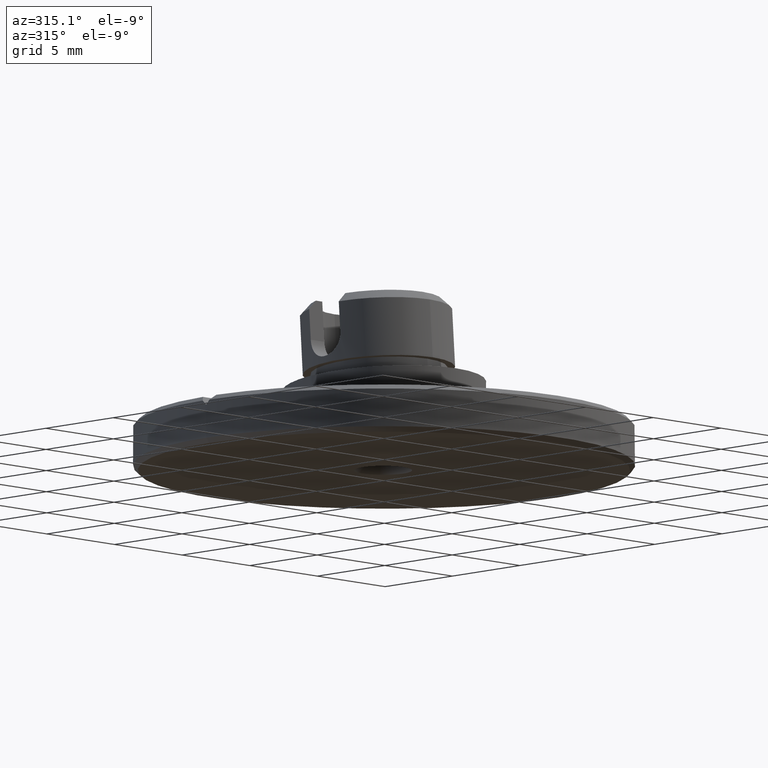
[diagram: clean part render]
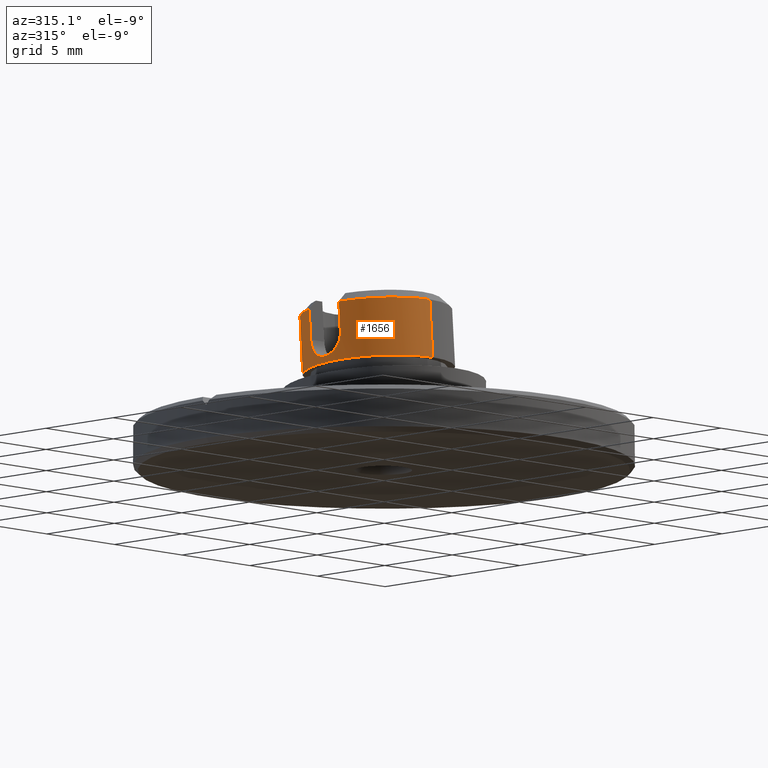
[diagram: same view with one face highlighted and labeled with its STEP entity id]
A machine part, auxiliary view. The second image highlights one B-rep face of the part: STEP entity #1656.
In plain terms, the highlighted cylindrical surface (partial cylindrical patch) has radius 4 mm, axis along (0, -0.0706, -0.9975).
Its self-contained STEP definition (entity closure, byte-faithful):
#6 = EDGE_CURVE ( 'NONE', #1511, #1275, #233, .T. ) ;
#13 = AXIS2_PLACEMENT_3D ( 'NONE', #252, #1212, #1739 ) ;
#33 = VERTEX_POINT ( 'NONE', #462 ) ;
#37 = AXIS2_PLACEMENT_3D ( 'NONE', #369, #1447, #246 ) ;
#69 = CARTESIAN_POINT ( 'NONE',  ( -3.949841633802362306, -0.2260954249495054635, 5.884650630171138097 ) ) ;
#91 = EDGE_CURVE ( 'NONE', #502, #468, #1169, .T. ) ;
#102 = CARTESIAN_POINT ( 'NONE',  ( -3.845776904042851552, -0.6305835851725555274, 6.668713156939706899 ) ) ;
#155 = CARTESIAN_POINT ( 'NONE',  ( 4.898587195981239528E-16, -3.396027000143525765, 8.671665112364138395 ) ) ;
#199 = FACE_OUTER_BOUND ( 'NONE', #254, .T. ) ;
#212 = CARTESIAN_POINT ( 'NONE',  ( -4.002202466705472084, 0.3248506242750630602, 5.643277554917893291 ) ) ;
#225 = VERTEX_POINT ( 'NONE', #969 ) ;
#227 = CARTESIAN_POINT ( 'NONE',  ( -3.999245467458501846, 0.4774496579999999990, 5.643277555000000056 ) ) ;
#233 = CIRCLE ( 'NONE', #37, 3.999999999306927290 ) ;
#239 = CARTESIAN_POINT ( 'NONE',  ( -3.855283437522810885, -0.6092927609013290002, 6.516415910101970965 ) ) ;
#243 = CARTESIAN_POINT ( 'NONE',  ( -3.999245467458501846, 0.4774496579999999990, 5.643277555000000056 ) ) ;
#246 = DIRECTION ( 'NONE',  ( 0.000000000000000000, 0.9975027964162799243, -0.07062698593102831324 ) ) ;
#252 = CARTESIAN_POINT ( 'NONE',  ( 0.000000000000000000, 0.5939841850262223000, 8.389157168675165366 ) ) ;
#254 = EDGE_LOOP ( 'NONE', ( #835, #1500, #721, #1558, #938, #1730, #792, #865, #1379 ) ) ;
#271 = CIRCLE ( 'NONE', #704, 3.999999999503388803 ) ;
#309 = CARTESIAN_POINT ( 'NONE',  ( -3.845776904999999690, 1.650626744000000201, 7.737903375999998445 ) ) ;
#338 = CARTESIAN_POINT ( 'NONE',  ( -3.845776904080406400, -0.6198034178708179409, 6.820967239133833182 ) ) ;
#347 = CARTESIAN_POINT ( 'NONE',  ( 0.000000000000000000, 4.583995370195976804, 8.106649224986124835 ) ) ;
#369 = CARTESIAN_POINT ( 'NONE',  ( 0.000000000000000000, 0.5939841850262223000, 8.389157168675165366 ) ) ;
#375 = CARTESIAN_POINT ( 'NONE',  ( -3.956445735948462161, 1.027421282519962231, 5.752271603674012468 ) ) ;
#392 = EDGE_CURVE ( 'NONE', #502, #1046, #1520, .T. ) ;
#421 = CARTESIAN_POINT ( 'NONE',  ( -3.845776904136075647, -0.6127407190647278235, 6.920717518701591686 ) ) ;
#457 = CARTESIAN_POINT ( 'NONE',  ( 4.898587195981239528E-16, -3.396027000143522656, 8.671665112364170369 ) ) ;
#462 = CARTESIAN_POINT ( 'NONE',  ( 0.000000000000000000, 4.365051713804024125, 5.014390556013872846 ) ) ;
#468 = VERTEX_POINT ( 'NONE', #1584 ) ;
#485 = LINE ( 'NONE', #347, #846 ) ;
#489 = CARTESIAN_POINT ( 'NONE',  ( -3.969905168674188634, -0.1009433282563570317, 5.795601120009746587 ) ) ;
#494 = VECTOR ( 'NONE', #1138, 1000.000000000000114 ) ;
#502 = VERTEX_POINT ( 'NONE', #1303 ) ;
#504 = EDGE_CURVE ( 'NONE', #468, #1206, #1162, .T. ) ;
#511 = CARTESIAN_POINT ( 'NONE',  ( -3.899094418882193214, 1.327123587928889847, 6.031452710930646610 ) ) ;
#540 = DIRECTION ( 'NONE',  ( 0.000000000000000000, 0.9975027964162804794, -0.07062698593102020861 ) ) ;
#648 = CARTESIAN_POINT ( 'NONE',  ( -3.880363411232375270, 1.409799123064931159, 6.143504813410682885 ) ) ;
#680 = CARTESIAN_POINT ( 'NONE',  ( -3.845776904080406400, -0.6198034178708179409, 6.820967239133833182 ) ) ;
#689 = VERTEX_POINT ( 'NONE', #830 ) ;
#690 = CARTESIAN_POINT ( 'NONE',  ( -3.845776903920725243, -0.5032688909071499905, 8.466846853190359568 ) ) ;
#704 = AXIS2_PLACEMENT_3D ( 'NONE', #1479, #1752, #540 ) ;
#721 = ORIENTED_EDGE ( 'NONE', *, *, #1041, .F. ) ;
#736 = VECTOR ( 'NONE', #975, 1000.000000000000000 ) ;
#753 = CYLINDRICAL_SURFACE ( 'NONE', #1425, 3.999999999503388803 ) ;
#780 = CARTESIAN_POINT ( 'NONE',  ( -3.996117288583032057, 0.1747324153680352432, 5.675105591784489256 ) ) ;
#792 = ORIENTED_EDGE ( 'NONE', *, *, #1284, .T. ) ;
#830 = CARTESIAN_POINT ( 'NONE',  ( 4.898587195981239528E-16, -3.614970656535478444, 5.579406443391885517 ) ) ;
#835 = ORIENTED_EDGE ( 'NONE', *, *, #1409, .F. ) ;
#846 = VECTOR ( 'NONE', #1728, 1000.000000000000000 ) ;
#865 = ORIENTED_EDGE ( 'NONE', *, *, #1172, .T. ) ;
#938 = ORIENTED_EDGE ( 'NONE', *, *, #91, .F. ) ;
#969 = CARTESIAN_POINT ( 'NONE',  ( 0.000000000000000000, 4.583995370195979469, 8.106649224986160363 ) ) ;
#975 = DIRECTION ( 'NONE',  ( 0.000000000000000000, -0.07062698593102016698, -0.9975027964162804794 ) ) ;
#980 = EDGE_CURVE ( 'NONE', #689, #33, #271, .T. ) ;
#1026 = DIRECTION ( 'NONE',  ( 0.000000000000000000, -0.07062698593102016698, -0.9975027964162804794 ) ) ;
#1033 = DIRECTION ( 'NONE',  ( 0.000000000000000000, 0.9975027964162804794, -0.07062698593102020861 ) ) ;
#1035 = CARTESIAN_POINT ( 'NONE',  ( -3.886544285283925593, -0.5089476023956016615, 6.233870315505503967 ) ) ;
#1041 = EDGE_CURVE ( 'NONE', #1206, #1275, #1343, .T. ) ;
#1046 = VERTEX_POINT ( 'NONE', #1499 ) ;
#1065 = CARTESIAN_POINT ( 'NONE',  ( -3.845776904341182245, 1.564852214132482988, 6.526463692365700453 ) ) ;
#1138 = DIRECTION ( 'NONE',  ( 0.000000000000000000, 0.07062698605560213672, 0.9975027964074595355 ) ) ;
#1162 = B_SPLINE_CURVE_WITH_KNOTS ( 'NONE', 3,
 ( #227, #212, #780, #489, #69, #1319, #1035, #239, #102, #338 ),
 .UNSPECIFIED., .F., .F.,
 ( 4, 2, 2, 2, 4 ),
 ( -9.353593745896338074E-14, 0.0004512627335315036762, 0.0009025254671565432086, 0.001353788200781582849, 0.001805050934406622490 ),
 .UNSPECIFIED. ) ;
#1169 = B_SPLINE_CURVE_WITH_KNOTS ( 'NONE', 3,
 ( #1561, #1065, #1175, #648, #511, #375, #1459, #243 ),
 .UNSPECIFIED., .F., .F.,
 ( 4, 2, 2, 4 ),
 ( -0.001649331700111985287, -0.001236998775107372821, -0.0008246658501027605715, -9.353585614380044433E-14 ),
 .UNSPECIFIED. ) ;
#1172 = EDGE_CURVE ( 'NONE', #225, #33, #485, .T. ) ;
#1175 = CARTESIAN_POINT ( 'NONE',  ( -3.853560230133680875, 1.528968594879399179, 6.392121191047349882 ) ) ;
#1206 = VERTEX_POINT ( 'NONE', #680 ) ;
#1212 = DIRECTION ( 'NONE',  ( 0.000000000000000000, -0.07062698593101987554, -0.9975027964162804794 ) ) ;
#1275 = VERTEX_POINT ( 'NONE', #690 ) ;
#1284 = EDGE_CURVE ( 'NONE', #1046, #225, #1320, .T. ) ;
#1294 = CARTESIAN_POINT ( 'NONE',  ( 0.000000000000000000, 0.5939841850262252976, 8.389157168675131615 ) ) ;
#1303 = CARTESIAN_POINT ( 'NONE',  ( -3.845776904583080302, 1.574702734041589558, 6.665587870330896614 ) ) ;
#1319 = CARTESIAN_POINT ( 'NONE',  ( -3.908214438304270733, -0.4292193004883105290, 6.102834521235702248 ) ) ;
#1320 = CIRCLE ( 'NONE', #13, 3.999999999306927290 ) ;
#1343 = LINE ( 'NONE', #421, #1681 ) ;
#1355 = DIRECTION ( 'NONE',  ( 1.218655832576382792E-10, 0.07062698596578982635, 0.9975027964138185599 ) ) ;
#1376 = LINE ( 'NONE', #155, #736 ) ;
#1379 = ORIENTED_EDGE ( 'NONE', *, *, #980, .F. ) ;
#1409 = EDGE_CURVE ( 'NONE', #1511, #689, #1376, .T. ) ;
#1425 = AXIS2_PLACEMENT_3D ( 'NONE', #1294, #1026, #1033 ) ;
#1447 = DIRECTION ( 'NONE',  ( 0.000000000000000000, -0.07062698593101987554, -0.9975027964162804794 ) ) ;
#1459 = CARTESIAN_POINT ( 'NONE',  ( -3.993841661661190923, 0.7563187122653363126, 5.643277554885259839 ) ) ;
#1479 = CARTESIAN_POINT ( 'NONE',  ( 0.000000000000000000, 0.3750405286342721189, 5.296898499702878738 ) ) ;
#1499 = CARTESIAN_POINT ( 'NONE',  ( -3.845776904454892620, 1.691237260960731792, 8.311467483634306319 ) ) ;
#1500 = ORIENTED_EDGE ( 'NONE', *, *, #6, .T. ) ;
#1511 = VERTEX_POINT ( 'NONE', #457 ) ;
#1520 = LINE ( 'NONE', #309, #494 ) ;
#1558 = ORIENTED_EDGE ( 'NONE', *, *, #504, .F. ) ;
#1561 = CARTESIAN_POINT ( 'NONE',  ( -3.845776904583080302, 1.574702734041589558, 6.665587870330896614 ) ) ;
#1584 = CARTESIAN_POINT ( 'NONE',  ( -3.999245467458501846, 0.4774496579999999990, 5.643277555000000056 ) ) ;
#1656 = ADVANCED_FACE ( 'NONE', ( #199 ), #753, .T. ) ;
#1681 = VECTOR ( 'NONE', #1355, 1000.000000000000227 ) ;
#1728 = DIRECTION ( 'NONE',  ( 0.000000000000000000, -0.07062698593102016698, -0.9975027964162804794 ) ) ;
#1730 = ORIENTED_EDGE ( 'NONE', *, *, #392, .T. ) ;
#1739 = DIRECTION ( 'NONE',  ( 0.000000000000000000, 0.9975027964162799243, -0.07062698593102831324 ) ) ;
#1752 = DIRECTION ( 'NONE',  ( 0.000000000000000000, -0.07062698593102016698, -0.9975027964162804794 ) ) ;